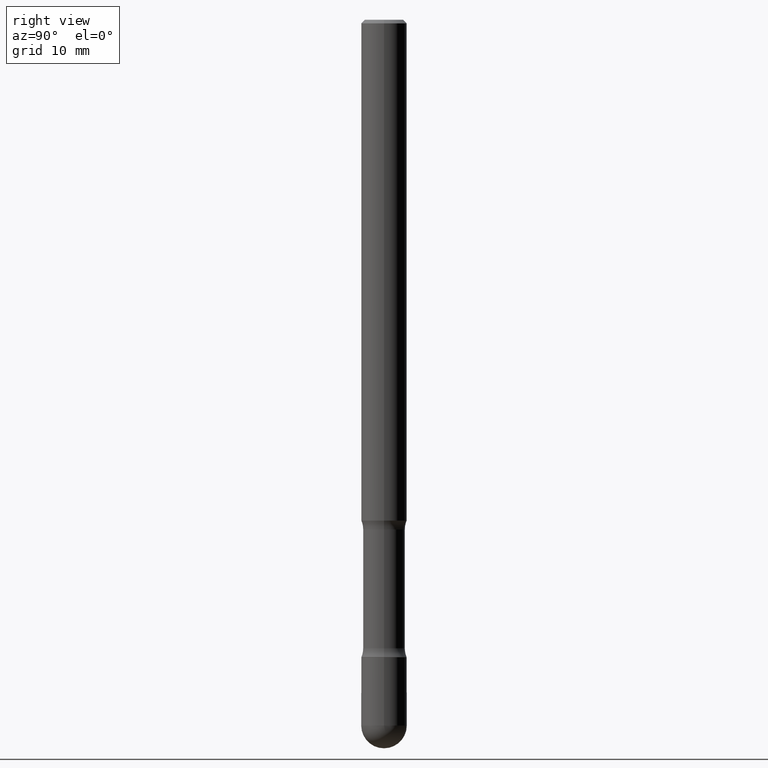
[diagram: clean part render]
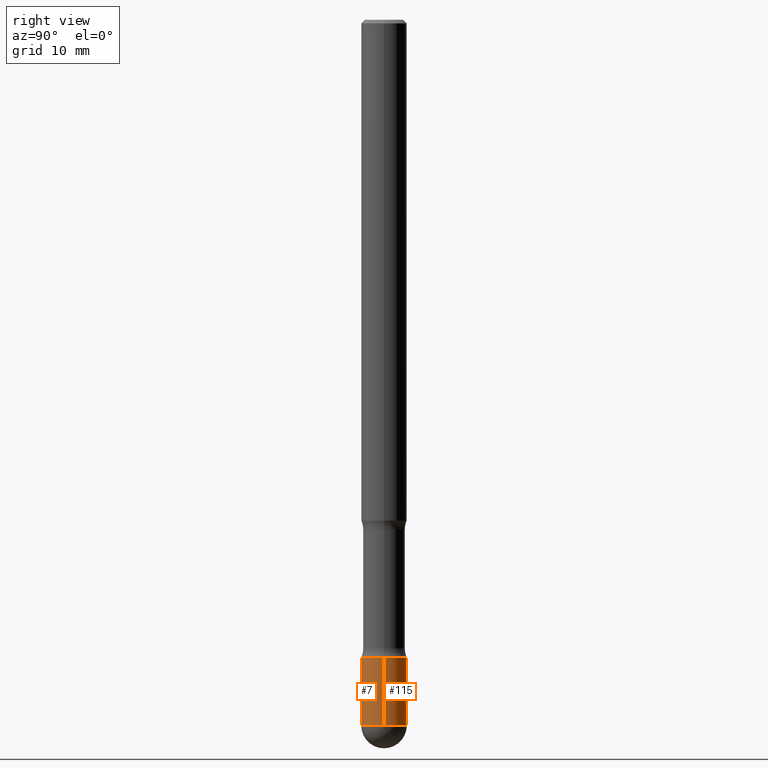
[diagram: same view with one multi-face feature highlighted, each face labeled with its STEP entity id]
A machine part, right view. The highlighted faces form ONE feature: a constant-radius fillet chain: 2 tangent blend faces with common blend radius 3.175 mm. The faces share edges in the B-rep.
Their STEP definitions:
[1] entity #7 (Cylinder):
#7 = ADVANCED_FACE ( 'NONE', ( #298 ), #241, .T. ) ;
#38 = DIRECTION ( 'NONE',  ( -2.445468806185136597E-29, 3.491481338843145583E-15, 1.000000000000000000 ) ) ;
#54 = EDGE_CURVE ( 'NONE', #118, #406, #534, .T. ) ;
#89 = EDGE_CURVE ( 'NONE', #208, #437, #125, .T. ) ;
#100 = ORIENTED_EDGE ( 'NONE', *, *, #440, .F. ) ;
#113 = AXIS2_PLACEMENT_3D ( 'NONE', #250, #204, #547 ) ;
#118 = VERTEX_POINT ( 'NONE', #349 ) ;
#120 = CARTESIAN_POINT ( 'NONE',  ( 9.476191623967405434E-29, -1.352949018801719066E-14, -3.875000000000000444 ) ) ;
#125 = LINE ( 'NONE', #382, #347 ) ;
#177 = VECTOR ( 'NONE', #196, 39.37007874015748143 ) ;
#191 = DIRECTION ( 'NONE',  ( -2.445468806185136597E-29, 3.491481338843145583E-15, 1.000000000000000000 ) ) ;
#196 = DIRECTION ( 'NONE',  ( -2.445468806185136877E-29, 3.491481338843145188E-15, 1.000000000000000000 ) ) ;
#204 = DIRECTION ( 'NONE',  ( -2.445468806185136597E-29, 3.491481338843145583E-15, 1.000000000000000000 ) ) ;
#208 = VERTEX_POINT ( 'NONE', #345 ) ;
#222 = EDGE_LOOP ( 'NONE', ( #500, #354, #369, #226, #100 ) ) ;
#226 = ORIENTED_EDGE ( 'NONE', *, *, #89, .T. ) ;
#241 = CYLINDRICAL_SURFACE ( 'NONE', #427, 0.1249999999999993200 ) ;
#250 = CARTESIAN_POINT ( 'NONE',  ( 8.559140821647976968E-29, -1.222018468595100619E-14, -3.499999999999999112 ) ) ;
#251 = CIRCLE ( 'NONE', #469, 0.1249999999999992784 ) ;
#252 = CIRCLE ( 'NONE', #269, 0.1249999999999992784 ) ;
#257 = EDGE_CURVE ( 'NONE', #317, #208, #251, .T. ) ;
#261 = DIRECTION ( 'NONE',  ( -2.445468806185136877E-29, 3.491481338843145188E-15, 1.000000000000000000 ) ) ;
#269 = AXIS2_PLACEMENT_3D ( 'NONE', #120, #38, #301 ) ;
#298 = FACE_OUTER_BOUND ( 'NONE', #222, .T. ) ;
#301 = DIRECTION ( 'NONE',  ( 1.000000000000000000, -6.982962677686272233E-15, 0.000000000000000000 ) ) ;
#314 = CARTESIAN_POINT ( 'NONE',  ( 9.476191623967405434E-29, -1.352949018801719066E-14, -3.875000000000000444 ) ) ;
#317 = VERTEX_POINT ( 'NONE', #444 ) ;
#318 = DIRECTION ( 'NONE',  ( 1.000000000000000000, -6.982962677686272233E-15, 0.000000000000000000 ) ) ;
#326 = CARTESIAN_POINT ( 'NONE',  ( -0.1249999999999993200, 8.881784197001204006E-16, -6.148668862818598596E-30 ) ) ;
#336 = CARTESIAN_POINT ( 'NONE',  ( 0.1249999999999993477, -1.309305502066178637E-14, -3.499999999999999112 ) ) ;
#345 = CARTESIAN_POINT ( 'NONE',  ( 0.1249999999999992784, -1.374770777169487624E-14, -3.875000000000000444 ) ) ;
#347 = VECTOR ( 'NONE', #261, 39.37007874015748143 ) ;
#349 = CARTESIAN_POINT ( 'NONE',  ( -0.1249999999999992784, -1.198665901728397714E-14, -3.875000000000000444 ) ) ;
#354 = ORIENTED_EDGE ( 'NONE', *, *, #554, .T. ) ;
#369 = ORIENTED_EDGE ( 'NONE', *, *, #257, .T. ) ;
#382 = CARTESIAN_POINT ( 'NONE',  ( 0.1249999999999993200, -8.728703347107785070E-16, 6.095220969744886110E-30 ) ) ;
#401 = CARTESIAN_POINT ( 'NONE',  ( -0.1249999999999993477, -1.198665901728397714E-14, -3.499999999999999112 ) ) ;
#406 = VERTEX_POINT ( 'NONE', #401 ) ;
#410 = DIRECTION ( 'NONE',  ( -2.445468806185136597E-29, 3.491481338843145583E-15, 1.000000000000000000 ) ) ;
#423 = DIRECTION ( 'NONE',  ( 1.000000000000000000, -6.982962677686265922E-15, 4.876176775795935232E-29 ) ) ;
#427 = AXIS2_PLACEMENT_3D ( 'NONE', #446, #410, #423 ) ;
#437 = VERTEX_POINT ( 'NONE', #336 ) ;
#440 = EDGE_CURVE ( 'NONE', #406, #437, #504, .T. ) ;
#444 = CARTESIAN_POINT ( 'NONE',  ( -8.728703347106869006E-16, -0.1250000000000132949, -3.875000000000000000 ) ) ;
#446 = CARTESIAN_POINT ( 'NONE',  ( 0.000000000000000000, 0.000000000000000000, 0.000000000000000000 ) ) ;
#469 = AXIS2_PLACEMENT_3D ( 'NONE', #314, #191, #318 ) ;
#500 = ORIENTED_EDGE ( 'NONE', *, *, #54, .F. ) ;
#504 = CIRCLE ( 'NONE', #113, 0.1249999999999993477 ) ;
#534 = LINE ( 'NONE', #326, #177 ) ;
#547 = DIRECTION ( 'NONE',  ( 1.000000000000000000, -6.982962677686268288E-15, 0.000000000000000000 ) ) ;
#554 = EDGE_CURVE ( 'NONE', #118, #317, #252, .T. ) ;
[2] entity #115 (Cylinder):
#54 = EDGE_CURVE ( 'NONE', #118, #406, #534, .T. ) ;
#56 = VERTEX_POINT ( 'NONE', #255 ) ;
#87 = DIRECTION ( 'NONE',  ( -2.445468806185136597E-29, 3.491481338843145583E-15, 1.000000000000000000 ) ) ;
#89 = EDGE_CURVE ( 'NONE', #208, #437, #125, .T. ) ;
#108 = ORIENTED_EDGE ( 'NONE', *, *, #119, .T. ) ;
#115 = ADVANCED_FACE ( 'NONE', ( #182 ), #467, .T. ) ;
#118 = VERTEX_POINT ( 'NONE', #349 ) ;
#119 = EDGE_CURVE ( 'NONE', #56, #118, #167, .T. ) ;
#125 = LINE ( 'NONE', #382, #347 ) ;
#158 = DIRECTION ( 'NONE',  ( 1.000000000000000000, -6.982962677686272233E-15, 0.000000000000000000 ) ) ;
#167 = CIRCLE ( 'NONE', #477, 0.1249999999999992784 ) ;
#168 = AXIS2_PLACEMENT_3D ( 'NONE', #457, #498, #377 ) ;
#177 = VECTOR ( 'NONE', #196, 39.37007874015748143 ) ;
#182 = FACE_OUTER_BOUND ( 'NONE', #235, .T. ) ;
#196 = DIRECTION ( 'NONE',  ( -2.445468806185136877E-29, 3.491481338843145188E-15, 1.000000000000000000 ) ) ;
#208 = VERTEX_POINT ( 'NONE', #345 ) ;
#213 = AXIS2_PLACEMENT_3D ( 'NONE', #288, #544, #158 ) ;
#214 = DIRECTION ( 'NONE',  ( 1.000000000000000000, -6.982962677686265922E-15, 4.876176775795935232E-29 ) ) ;
#235 = EDGE_LOOP ( 'NONE', ( #108, #266, #329, #558, #313 ) ) ;
#255 = CARTESIAN_POINT ( 'NONE',  ( 8.881784197002165430E-16, 0.1249999999999859834, -3.875000000000001332 ) ) ;
#261 = DIRECTION ( 'NONE',  ( -2.445468806185136877E-29, 3.491481338843145188E-15, 1.000000000000000000 ) ) ;
#266 = ORIENTED_EDGE ( 'NONE', *, *, #54, .T. ) ;
#288 = CARTESIAN_POINT ( 'NONE',  ( 9.476191623967405434E-29, -1.352949018801719066E-14, -3.875000000000000444 ) ) ;
#300 = DIRECTION ( 'NONE',  ( -2.445468806185136597E-29, 3.491481338843145583E-15, 1.000000000000000000 ) ) ;
#313 = ORIENTED_EDGE ( 'NONE', *, *, #476, .T. ) ;
#326 = CARTESIAN_POINT ( 'NONE',  ( -0.1249999999999993200, 8.881784197001204006E-16, -6.148668862818598596E-30 ) ) ;
#329 = ORIENTED_EDGE ( 'NONE', *, *, #431, .F. ) ;
#336 = CARTESIAN_POINT ( 'NONE',  ( 0.1249999999999993477, -1.309305502066178637E-14, -3.499999999999999112 ) ) ;
#345 = CARTESIAN_POINT ( 'NONE',  ( 0.1249999999999992784, -1.374770777169487624E-14, -3.875000000000000444 ) ) ;
#347 = VECTOR ( 'NONE', #261, 39.37007874015748143 ) ;
#349 = CARTESIAN_POINT ( 'NONE',  ( -0.1249999999999992784, -1.198665901728397714E-14, -3.875000000000000444 ) ) ;
#353 = DIRECTION ( 'NONE',  ( 1.000000000000000000, -6.982962677686272233E-15, 0.000000000000000000 ) ) ;
#377 = DIRECTION ( 'NONE',  ( 1.000000000000000000, -6.982962677686268288E-15, 0.000000000000000000 ) ) ;
#382 = CARTESIAN_POINT ( 'NONE',  ( 0.1249999999999993200, -8.728703347107785070E-16, 6.095220969744886110E-30 ) ) ;
#392 = AXIS2_PLACEMENT_3D ( 'NONE', #472, #87, #214 ) ;
#401 = CARTESIAN_POINT ( 'NONE',  ( -0.1249999999999993477, -1.198665901728397714E-14, -3.499999999999999112 ) ) ;
#406 = VERTEX_POINT ( 'NONE', #401 ) ;
#431 = EDGE_CURVE ( 'NONE', #437, #406, #438, .T. ) ;
#437 = VERTEX_POINT ( 'NONE', #336 ) ;
#438 = CIRCLE ( 'NONE', #168, 0.1249999999999993477 ) ;
#455 = CIRCLE ( 'NONE', #213, 0.1249999999999992784 ) ;
#457 = CARTESIAN_POINT ( 'NONE',  ( 8.559140821647976968E-29, -1.222018468595100619E-14, -3.499999999999999112 ) ) ;
#467 = CYLINDRICAL_SURFACE ( 'NONE', #392, 0.1249999999999993200 ) ;
#472 = CARTESIAN_POINT ( 'NONE',  ( 0.000000000000000000, 0.000000000000000000, 0.000000000000000000 ) ) ;
#476 = EDGE_CURVE ( 'NONE', #208, #56, #455, .T. ) ;
#477 = AXIS2_PLACEMENT_3D ( 'NONE', #560, #300, #353 ) ;
#498 = DIRECTION ( 'NONE',  ( -2.445468806185136597E-29, 3.491481338843145583E-15, 1.000000000000000000 ) ) ;
#534 = LINE ( 'NONE', #326, #177 ) ;
#544 = DIRECTION ( 'NONE',  ( -2.445468806185136597E-29, 3.491481338843145583E-15, 1.000000000000000000 ) ) ;
#558 = ORIENTED_EDGE ( 'NONE', *, *, #89, .F. ) ;
#560 = CARTESIAN_POINT ( 'NONE',  ( 9.476191623967405434E-29, -1.352949018801719066E-14, -3.875000000000000444 ) ) ;